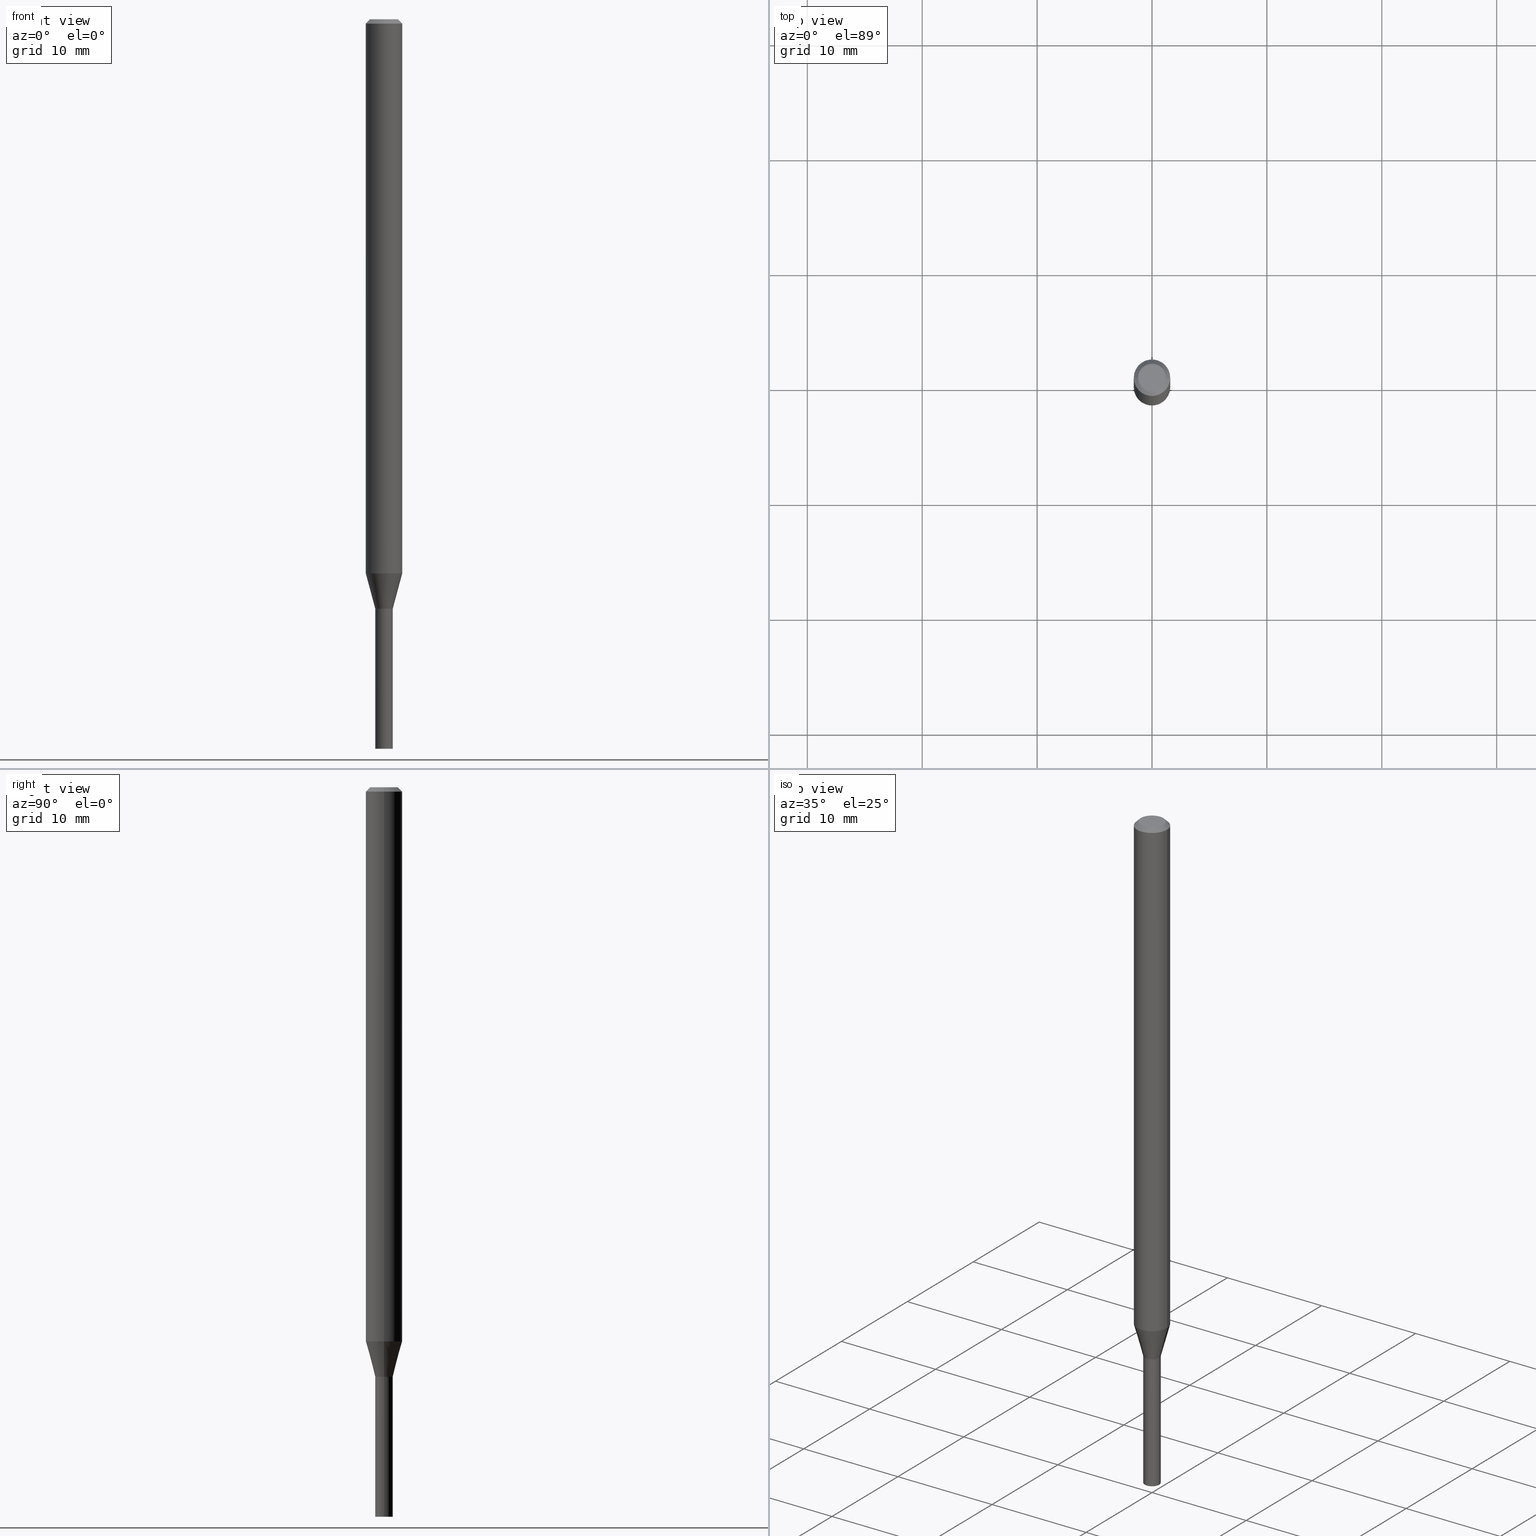
[diagram: canonical four-view strip — front | top / right | iso, engineering-drawing reading convention]
A machine part, canonical four-view strip (front | top / right | iso — engineering-drawing reading convention). The complete STEP part file that produces these views, byte-faithful:
ISO-10303-21;
HEADER;
FILE_DESCRIPTION (( 'STEP AP203' ),
    '1' );
FILE_NAME ('01267.STEP',
    '2024-03-20T00:46:48',
    ( '' ),
    ( '' ),
    'SwSTEP 2.0',
    'SolidWorks 2023',
    '' );
FILE_SCHEMA (( 'CONFIG_CONTROL_DESIGN' ));
ENDSEC;

DATA;
#1 = DIRECTION ( 'NONE',  ( -0.7071067811865656694, 7.493145998870420424E-15, 0.7071067811865294761 ) ) ;
#2 = CARTESIAN_POINT ( 'NONE',  ( 2.094888803306373988E-16, 0.02999999999999294897, -2.020000000000000018 ) ) ;
#3 = ADVANCED_FACE ( 'NONE', ( #33 ), #221, .T. ) ;
#4 = DIRECTION ( 'NONE',  ( 0.7071067811865511255, -7.319954787623268667E-15, -0.7071067811865439090 ) ) ;
#5 = EDGE_CURVE ( 'NONE', #382, #13, #309, .T. ) ;
#6 = CARTESIAN_POINT ( 'NONE',  ( -0.03000000000000020012, -6.512422520732689044E-15, -2.020000000000000018 ) ) ;
#7 = CARTESIAN_POINT ( 'NONE',  ( -0.06250000000000000000, -2.896749283981420152E-15, -0.01499999999999999944 ) ) ;
#8 = DIRECTION ( 'NONE',  ( 1.000000000000000000, -6.982962677686267499E-15, 4.852736867747366768E-29 ) ) ;
#9 = CIRCLE ( 'NONE', #76, 0.04749999999999999362 ) ;
#10 = DIRECTION ( 'NONE',  ( 0.7071067811865656694, -2.468850131082446387E-15, 0.7071067811865294761 ) ) ;
#11 = CALENDAR_DATE ( 2024, 19, 3 ) ;
#12 = DIRECTION ( 'NONE',  ( 1.000000000000000000, -6.982962677686250933E-15, 0.000000000000000000 ) ) ;
#13 = VERTEX_POINT ( 'NONE', #7 ) ;
#14 = DIRECTION ( 'NONE',  ( -1.000000000000000000, 6.982962677686266711E-15, 0.000000000000000000 ) ) ;
#15 = APPROVAL_STATUS ( 'not_yet_approved' ) ;
#16 = CARTESIAN_POINT ( 'NONE',  ( 4.939846988493976845E-29, -7.052792304463155252E-15, -2.020000000000000462 ) ) ;
#17 = ORIENTED_EDGE ( 'NONE', *, *, #322, .F. ) ;
#18 = CARTESIAN_POINT ( 'NONE',  ( 4.939846988493976845E-29, -7.052792304463155252E-15, -2.020000000000000462 ) ) ;
#19 = LINE ( 'NONE', #318, #424 ) ;
#20 = APPLICATION_CONTEXT ( 'configuration controlled 3d designs of mechanical parts and assemblies' ) ;
#21 = VERTEX_POINT ( 'NONE', #6 ) ;
#22 = AXIS2_PLACEMENT_3D ( 'NONE', #30, #337, #257 ) ;
#23 = DIRECTION ( 'NONE',  ( 1.000000000000000000, -6.982962677686250933E-15, 0.000000000000000000 ) ) ;
#24 = CONICAL_SURFACE ( 'NONE', #239, 0.02949999999999999845, 0.7853981633974739252 ) ;
#25 = ORIENTED_EDGE ( 'NONE', *, *, #376, .F. ) ;
#26 = ORIENTED_EDGE ( 'NONE', *, *, #120, .F. ) ;
#27 = EDGE_CURVE ( 'NONE', #386, #382, #430, .T. ) ;
#28 = ADVANCED_FACE ( 'NONE', ( #396 ), #291, .T. ) ;
#29 = VERTEX_POINT ( 'NONE', #70 ) ;
#30 = CARTESIAN_POINT ( 'NONE',  ( 3.668203209277705088E-31, -5.237222008264718399E-17, -0.01499999999999999944 ) ) ;
#31 = CONICAL_SURFACE ( 'NONE', #230, 0.06250000000000000000, 0.7853981633974533860 ) ;
#32 = DIRECTION ( 'NONE',  ( 2.445468806185136597E-29, -3.491481338843145583E-15, -1.000000000000000000 ) ) ;
#33 = FACE_OUTER_BOUND ( 'NONE', #459, .T. ) ;
#34 = EDGE_CURVE ( 'NONE', #29, #248, #398, .T. ) ;
#35 = DIRECTION ( 'NONE',  ( -2.445468806185136597E-29, 3.491481338843145583E-15, 1.000000000000000000 ) ) ;
#36 = AXIS2_PLACEMENT_3D ( 'NONE', #71, #363, #226 ) ;
#37 = VECTOR ( 'NONE', #453, 39.37007874015748143 ) ;
#38 = DIRECTION ( 'NONE',  ( -2.445468806185136597E-29, 3.491481338843145583E-15, 1.000000000000000000 ) ) ;
#39 = PRODUCT ( '01267', '01267', '', ( #371 ) ) ;
#40 = DIRECTION ( 'NONE',  ( -2.445468806185136597E-29, 3.491481338843145583E-15, 1.000000000000000000 ) ) ;
#41 = DIRECTION ( 'NONE',  ( 1.000000000000000000, -6.982962677686268288E-15, 0.000000000000000000 ) ) ;
#42 = CIRCLE ( 'NONE', #334, 0.03000000000000019665 ) ;
#43 = CIRCLE ( 'NONE', #277, 0.06250000000000000000 ) ;
#44 = LOCAL_TIME ( 20, 46, 48.00000000000000000, #73 ) ;
#45 = FACE_OUTER_BOUND ( 'NONE', #326, .T. ) ;
#46 = EDGE_LOOP ( 'NONE', ( #304, #93, #383, #282 ) ) ;
#47 = COORDINATED_UNIVERSAL_TIME_OFFSET ( 5, 0, .BEHIND. ) ;
#48 = FACE_OUTER_BOUND ( 'NONE', #118, .T. ) ;
#49 = APPROVAL ( #15, 'UNSPECIFIED' ) ;
#50 = DIRECTION ( 'NONE',  ( -2.445468806185136597E-29, 3.491481338843145583E-15, 1.000000000000000000 ) ) ;
#51 = DATE_TIME_ROLE ( 'classification_date' ) ;
#52 = EDGE_CURVE ( 'NONE', #276, #269, #225, .T. ) ;
#53 = CARTESIAN_POINT ( 'NONE',  ( 4.939846988493976284E-29, -7.052792304463154463E-15, -2.020000000000000018 ) ) ;
#54 = EDGE_CURVE ( 'NONE', #21, #269, #290, .T. ) ;
#55 = CARTESIAN_POINT ( 'NONE',  ( 4.938624254090883483E-29, -7.051046563793732960E-15, -2.019500000000000295 ) ) ;
#56 = ORIENTED_EDGE ( 'NONE', *, *, #120, .T. ) ;
#57 = DIRECTION ( 'NONE',  ( 1.000000000000000000, -6.982962677686265922E-15, 4.876176775795935793E-29 ) ) ;
#58 = EDGE_CURVE ( 'NONE', #423, #382, #110, .T. ) ;
#59 = EDGE_LOOP ( 'NONE', ( #210, #425, #449, #177 ) ) ;
#60 = VECTOR ( 'NONE', #289, 39.37007874015748143 ) ;
#61 = CIRCLE ( 'NONE', #122, 0.02949999999999999845 ) ;
#62 = VERTEX_POINT ( 'NONE', #253 ) ;
#63 = ORIENTED_EDGE ( 'NONE', *, *, #407, .F. ) ;
#64 = APPROVAL ( #313, 'UNSPECIFIED' ) ;
#65 = ORIENTED_EDGE ( 'NONE', *, *, #78, .F. ) ;
#66 = LINE ( 'NONE', #294, #185 ) ;
#67 = VECTOR ( 'NONE', #10, 39.37007874015748143 ) ;
#68 = DIRECTION ( 'NONE',  ( -2.445468806185136877E-29, 3.491481338843145188E-15, 1.000000000000000000 ) ) ;
#69 = DIRECTION ( 'NONE',  ( 1.000000000000000000, -6.982962677686250933E-15, 0.000000000000000000 ) ) ;
#70 = CARTESIAN_POINT ( 'NONE',  ( -0.02999999999999999889, -7.677585005057479852E-15, -2.020000000000000018 ) ) ;
#71 = CARTESIAN_POINT ( 'NONE',  ( 0.000000000000000000, 0.000000000000000000, 0.000000000000000000 ) ) ;
#72 = CARTESIAN_POINT ( 'NONE',  ( -0.03000000000000019665, -6.837883743065701137E-15, -2.019500000000000295 ) ) ;
#73 = COORDINATED_UNIVERSAL_TIME_OFFSET ( 5, 0, .BEHIND. ) ;
#74 = CYLINDRICAL_SURFACE ( 'NONE', #457, 0.03000000000000020012 ) ;
#75 = CIRCLE ( 'NONE', #404, 0.02999999999999999889 ) ;
#76 = AXIS2_PLACEMENT_3D ( 'NONE', #370, #409, #8 ) ;
#77 = PERSON_AND_ORGANIZATION_ROLE ( 'design_supplier' ) ;
#78 = EDGE_CURVE ( 'NONE', #465, #248, #297, .T. ) ;
#79 = DIRECTION ( 'NONE',  ( 2.438088387897960049E-29, -3.491481338843145188E-15, -1.000000000000000000 ) ) ;
#80 = PERSON_AND_ORGANIZATION ( #175, #268 ) ;
#81 = CARTESIAN_POINT ( 'NONE',  ( 4.643232038921227180E-29, -6.629304767580318063E-15, -1.898708348754012398 ) ) ;
#82 = CC_DESIGN_PERSON_AND_ORGANIZATION_ASSIGNMENT ( #401, #77, ( #113 ) ) ;
#83 = ORIENTED_EDGE ( 'NONE', *, *, #54, .T. ) ;
#84 = PERSON_AND_ORGANIZATION ( #175, #268 ) ;
#85 = DIRECTION ( 'NONE',  ( 1.000000000000000000, -6.982962677686266711E-15, 4.876176775795935793E-29 ) ) ;
#86 = ADVANCED_FACE ( 'NONE', ( #149 ), #392, .F. ) ;
#87 = VECTOR ( 'NONE', #332, 39.37007874015748143 ) ;
#88 = CALENDAR_DATE ( 2024, 19, 3 ) ;
#89 = VECTOR ( 'NONE', #258, 39.37007874015748143 ) ;
#90 = CARTESIAN_POINT ( 'NONE',  ( 0.03000000000000020012, -2.094888803305894015E-16, 1.462853032738790512E-30 ) ) ;
#91 = EDGE_LOOP ( 'NONE', ( #115, #129, #137, #442 ) ) ;
#92 = CARTESIAN_POINT ( 'NONE',  ( 4.939846988493976845E-29, -7.052792304463155252E-15, -2.020000000000000462 ) ) ;
#93 = ORIENTED_EDGE ( 'NONE', *, *, #426, .T. ) ;
#94 = DIRECTION ( 'NONE',  ( -2.438088387897960049E-29, 3.491481338843145188E-15, 1.000000000000000000 ) ) ;
#95 = ADVANCED_FACE ( 'NONE', ( #108 ), #255, .T. ) ;
#96 = ORIENTED_EDGE ( 'NONE', *, *, #376, .T. ) ;
#97 = VECTOR ( 'NONE', #128, 39.37007874015748854 ) ;
#98 = CARTESIAN_POINT ( 'NONE',  ( 0.03000000000000019665, -7.260535444124322854E-15, -2.019500000000000295 ) ) ;
#99 = CC_DESIGN_DATE_AND_TIME_ASSIGNMENT ( #274, #51, ( #193 ) ) ;
#100 = ORIENTED_EDGE ( 'NONE', *, *, #78, .T. ) ;
#101 = EDGE_LOOP ( 'NONE', ( #418, #366, #301, #317 ) ) ;
#102 = EDGE_CURVE ( 'NONE', #415, #269, #42, .T. ) ;
#103 = DIRECTION ( 'NONE',  ( -2.445468806185136597E-29, 3.491481338843145583E-15, 1.000000000000000000 ) ) ;
#104 = EDGE_CURVE ( 'NONE', #465, #62, #184, .T. ) ;
#105 = DIRECTION ( 'NONE',  ( 1.000000000000000000, -6.982962677686267499E-15, 4.876176775795936353E-29 ) ) ;
#106 = CIRCLE ( 'NONE', #368, 0.03000000000000020012 ) ;
#107 = EDGE_CURVE ( 'NONE', #353, #13, #66, .T. ) ;
#108 = FACE_OUTER_BOUND ( 'NONE', #124, .T. ) ;
#109 = ADVANCED_FACE ( 'NONE', ( #219 ), #31, .T. ) ;
#110 = LINE ( 'NONE', #331, #202 ) ;
#111 = CARTESIAN_POINT ( 'NONE',  ( 4.939846988493976845E-29, -7.052792304463155252E-15, -2.020000000000000462 ) ) ;
#112 = CIRCLE ( 'NONE', #393, 0.03000000000000020012 ) ;
#113 = PRODUCT_DEFINITION_FORMATION_WITH_SPECIFIED_SOURCE ( 'ANY', '', #39, .NOT_KNOWN. ) ;
#114 = DIRECTION ( 'NONE',  ( -2.445468806185136597E-29, 3.491481338843145583E-15, 1.000000000000000000 ) ) ;
#115 = ORIENTED_EDGE ( 'NONE', *, *, #52, .F. ) ;
#116 = CALENDAR_DATE ( 2024, 19, 3 ) ;
#117 = FACE_OUTER_BOUND ( 'NONE', #421, .T. ) ;
#118 = EDGE_LOOP ( 'NONE', ( #375, #433, #171, #324 ) ) ;
#119 = PERSON_AND_ORGANIZATION ( #175, #268 ) ;
#120 = EDGE_CURVE ( 'NONE', #423, #390, #299, .T. ) ;
#121 = CYLINDRICAL_SURFACE ( 'NONE', #131, 0.06250000000000000000 ) ;
#122 = AXIS2_PLACEMENT_3D ( 'NONE', #18, #422, #23 ) ;
#123 = CYLINDRICAL_SURFACE ( 'NONE', #154, 0.02999999999999999889 ) ;
#124 = EDGE_LOOP ( 'NONE', ( #139, #169, #328, #63 ) ) ;
#125 = DIRECTION ( 'NONE',  ( 1.000000000000000000, 0.000000000000000000, 0.000000000000000000 ) ) ;
#126 = CYLINDRICAL_SURFACE ( 'NONE', #192, 0.03000000000000020012 ) ;
#127 = DATE_AND_TIME ( #403, #286 ) ;
#128 = DIRECTION ( 'NONE',  ( -0.2588190451025211281, 5.211531920934547886E-15, 0.9659258262890679791 ) ) ;
#129 = ORIENTED_EDGE ( 'NONE', *, *, #247, .T. ) ;
#130 = CLOSED_SHELL ( 'NONE', ( #3, #369, #220, #86 ) ) ;
#131 = AXIS2_PLACEMENT_3D ( 'NONE', #402, #114, #365 ) ;
#132 = LOCAL_TIME ( 20, 46, 48.00000000000000000, #450 ) ;
#133 = FACE_OUTER_BOUND ( 'NONE', #262, .T. ) ;
#134 = ORIENTED_EDGE ( 'NONE', *, *, #135, .F. ) ;
#135 = EDGE_CURVE ( 'NONE', #62, #29, #295, .T. ) ;
#136 = DIRECTION ( 'NONE',  ( 1.000000000000000000, -6.982962677686253300E-15, 0.000000000000000000 ) ) ;
#137 = ORIENTED_EDGE ( 'NONE', *, *, #243, .T. ) ;
#138 = CARTESIAN_POINT ( 'NONE',  ( 6.194428952736783458E-29, -8.613054816532157721E-15, -2.500000000000000000 ) ) ;
#139 = ORIENTED_EDGE ( 'NONE', *, *, #107, .F. ) ;
#140 = CLOSED_SHELL ( 'NONE', ( #338, #216, #109, #197, #416, #278, #95, #158, #165, #464, #28, #256 ) ) ;
#141 = AXIS2_PLACEMENT_3D ( 'NONE', #55, #420, #381 ) ;
#142 = EDGE_LOOP ( 'NONE', ( #26, #436, #214, #288 ) ) ;
#143 = MANIFOLD_SOLID_BREP ( 'Body-Move/Copy2[2]', #140 ) ;
#144 = DIRECTION ( 'NONE',  ( 1.000000000000000000, -6.982962677686268288E-15, 0.000000000000000000 ) ) ;
#145 = DIRECTION ( 'NONE',  ( -2.445468806185136597E-29, 3.491481338843145583E-15, 1.000000000000000000 ) ) ;
#146 = CC_DESIGN_PERSON_AND_ORGANIZATION_ASSIGNMENT ( #240, #161, ( #39 ) ) ;
#147 = AXIS2_PLACEMENT_3D ( 'NONE', #2, #361, #359 ) ;
#148 = CIRCLE ( 'NONE', #429, 0.06250000000000000000 ) ;
#149 = FACE_OUTER_BOUND ( 'NONE', #215, .T. ) ;
#150 = CC_DESIGN_APPROVAL ( #49, ( #196 ) ) ;
#151 = CARTESIAN_POINT ( 'NONE',  ( 4.938624254090883483E-29, -7.051046563793732960E-15, -2.019500000000000295 ) ) ;
#152 = CARTESIAN_POINT ( 'NONE',  ( -0.03000000000000020012, 2.131628207280314777E-16, -1.475680527076481516E-30 ) ) ;
#153 = CARTESIAN_POINT ( 'NONE',  ( 0.02949999999999999845, -7.258789703454898984E-15, -2.020000000000000462 ) ) ;
#154 = AXIS2_PLACEMENT_3D ( 'NONE', #314, #434, #400 ) ;
#155 = APPROVAL_DATE_TIME ( #127, #345 ) ;
#156 = FACE_OUTER_BOUND ( 'NONE', #463, .T. ) ;
#157 = ORIENTED_EDGE ( 'NONE', *, *, #34, .T. ) ;
#158 = ADVANCED_FACE ( 'NONE', ( #156 ), #267, .T. ) ;
#159 = CARTESIAN_POINT ( 'NONE',  ( 0.000000000000000000, 0.000000000000000000, 0.000000000000000000 ) ) ;
#160 = CARTESIAN_POINT ( 'NONE',  ( 0.000000000000000000, 0.000000000000000000, 0.000000000000000000 ) ) ;
#161 = PERSON_AND_ORGANIZATION_ROLE ( 'design_owner' ) ;
#162 = DIRECTION ( 'NONE',  ( 1.000000000000000000, -6.982962677686262766E-15, 0.000000000000000000 ) ) ;
#163 = CIRCLE ( 'NONE', #141, 0.03000000000000019665 ) ;
#164 = CALENDAR_DATE ( 2024, 19, 3 ) ;
#165 = ADVANCED_FACE ( 'NONE', ( #201 ), #339, .F. ) ;
#166 = CARTESIAN_POINT ( 'NONE',  ( 0.02949999999999999845, -7.258789703454898984E-15, -2.020000000000000462 ) ) ;
#167 = PERSON_AND_ORGANIZATION_ROLE ( 'creator' ) ;
#168 = DIRECTION ( 'NONE',  ( -2.445468806185136597E-29, 3.491481338843145583E-15, 1.000000000000000000 ) ) ;
#169 = ORIENTED_EDGE ( 'NONE', *, *, #322, .T. ) ;
#170 = CARTESIAN_POINT ( 'NONE',  ( 0.06250000000000000000, -4.888073874380388472E-16, -0.01499999999999999944 ) ) ;
#171 = ORIENTED_EDGE ( 'NONE', *, *, #102, .F. ) ;
#172 = AXIS2_PLACEMENT_3D ( 'NONE', #111, #145, #69 ) ;
#173 = DIRECTION ( 'NONE',  ( -2.445468806185136597E-29, 3.491481338843145583E-15, 1.000000000000000000 ) ) ;
#174 = ORIENTED_EDGE ( 'NONE', *, *, #349, .F. ) ;
#175 = PERSON ( 'UNSPECIFIED', 'UNSPECIFIED', 'UNSPECIFIED', ('UNSPECIFIED'), ('UNSPECIFIED'), ('UNSPECIFIED') ) ;
#176 = EDGE_CURVE ( 'NONE', #390, #423, #9, .T. ) ;
#177 = ORIENTED_EDGE ( 'NONE', *, *, #27, .F. ) ;
#178 = CC_DESIGN_PERSON_AND_ORGANIZATION_ASSIGNMENT ( #452, #272, ( #113 ) ) ;
#179 = ORIENTED_EDGE ( 'NONE', *, *, #247, .F. ) ;
#180 = AXIS2_PLACEMENT_3D ( 'NONE', #271, #79, #306 ) ;
#181 = DIRECTION ( 'NONE',  ( 1.000000000000000000, -6.982962677686254089E-15, 0.000000000000000000 ) ) ;
#182 = CARTESIAN_POINT ( 'NONE',  ( 4.939846988493976284E-29, -7.052792304463154463E-15, -2.020000000000000018 ) ) ;
#183 = CARTESIAN_POINT ( 'NONE',  ( 3.774932479771048470E-45, -5.389603120341614588E-31, -1.543643685097680012E-16 ) ) ;
#184 = CIRCLE ( 'NONE', #443, 0.02999999999999999889 ) ;
#185 = VECTOR ( 'NONE', #68, 39.37007874015748143 ) ;
#186 = DIRECTION ( 'NONE',  ( 1.000000000000000000, -6.982962677686267499E-15, 4.852736867747366768E-29 ) ) ;
#187 = CC_DESIGN_PERSON_AND_ORGANIZATION_ASSIGNMENT ( #190, #302, ( #193 ) ) ;
#188 = CARTESIAN_POINT ( 'NONE',  ( 0.000000000000000000, 0.000000000000000000, 0.000000000000000000 ) ) ;
#189 = DIRECTION ( 'NONE',  ( -2.445468806185136597E-29, 3.491481338843145583E-15, 1.000000000000000000 ) ) ;
#190 = PERSON_AND_ORGANIZATION ( #175, #268 ) ;
#191 = FACE_OUTER_BOUND ( 'NONE', #101, .T. ) ;
#192 = AXIS2_PLACEMENT_3D ( 'NONE', #160, #410, #85 ) ;
#193 = SECURITY_CLASSIFICATION ( '', '', #377 ) ;
#194 =( NAMED_UNIT ( * ) PLANE_ANGLE_UNIT ( ) SI_UNIT ( $, .RADIAN. ) );
#195 = DIRECTION ( 'NONE',  ( -2.445468806185136597E-29, 3.491481338843145583E-15, 1.000000000000000000 ) ) ;
#196 = PRODUCT_DEFINITION ( 'UNKNOWN', '', #113, #264 ) ;
#197 = ADVANCED_FACE ( 'NONE', ( #263 ), #121, .T. ) ;
#198 = DATE_TIME_ROLE ( 'creation_date' ) ;
#199 = DIRECTION ( 'NONE',  ( 1.000000000000000000, -6.982962677686253300E-15, 0.000000000000000000 ) ) ;
#200 = VERTEX_POINT ( 'NONE', #153 ) ;
#201 = FACE_OUTER_BOUND ( 'NONE', #242, .T. ) ;
#202 = VECTOR ( 'NONE', #4, 39.37007874015748143 ) ;
#203 = CC_DESIGN_SECURITY_CLASSIFICATION ( #193, ( #113 ) ) ;
#204 = SHAPE_DEFINITION_REPRESENTATION ( #259, #327 ) ;
#205 = DIRECTION ( 'NONE',  ( -2.445468806185136597E-29, 3.491481338843145583E-15, 1.000000000000000000 ) ) ;
#206 = FACE_OUTER_BOUND ( 'NONE', #46, .T. ) ;
#207 = ORIENTED_EDGE ( 'NONE', *, *, #426, .F. ) ;
#208 = UNCERTAINTY_MEASURE_WITH_UNIT (LENGTH_MEASURE( 1.000000000000000082E-05 ), #462, 'distance_accuracy_value', 'NONE');
#209 = DIRECTION ( 'NONE',  ( -2.445468806185136597E-29, 3.491481338843145583E-15, 1.000000000000000000 ) ) ;
#210 = ORIENTED_EDGE ( 'NONE', *, *, #222, .T. ) ;
#211 = AXIS2_PLACEMENT_3D ( 'NONE', #182, #103, #144 ) ;
#212 = AXIS2_PLACEMENT_3D ( 'NONE', #183, #35, #186 ) ;
#213 =( LENGTH_UNIT ( ) NAMED_UNIT ( * ) SI_UNIT ( $, .METRE. ) );
#214 = ORIENTED_EDGE ( 'NONE', *, *, #5, .T. ) ;
#215 = EDGE_LOOP ( 'NONE', ( #461, #157 ) ) ;
#216 = ADVANCED_FACE ( 'NONE', ( #48 ), #24, .T. ) ;
#217 = ORIENTED_EDGE ( 'NONE', *, *, #176, .F. ) ;
#218 = CIRCLE ( 'NONE', #335, 0.02999999999999999889 ) ;
#219 = FACE_OUTER_BOUND ( 'NONE', #142, .T. ) ;
#220 = ADVANCED_FACE ( 'NONE', ( #45 ), #123, .T. ) ;
#221 = CYLINDRICAL_SURFACE ( 'NONE', #298, 0.02999999999999999889 ) ;
#222 = EDGE_CURVE ( 'NONE', #386, #353, #43, .T. ) ;
#223 = CARTESIAN_POINT ( 'NONE',  ( -0.02949999999999999845, -6.843182197413925117E-15, -2.020000000000000462 ) ) ;
#224 = AXIS2_PLACEMENT_3D ( 'NONE', #92, #94, #384 ) ;
#225 = LINE ( 'NONE', #223, #378 ) ;
#226 = DIRECTION ( 'NONE',  ( 1.000000000000000000, -6.982962677686266711E-15, 4.876176775795935793E-29 ) ) ;
#227 = CARTESIAN_POINT ( 'NONE',  ( -0.02949999999999999845, -6.840532970239813127E-15, -2.020000000000000462 ) ) ;
#228 = PERSON_AND_ORGANIZATION ( #175, #268 ) ;
#229 = CARTESIAN_POINT ( 'NONE',  ( 0.000000000000000000, 0.000000000000000000, 0.000000000000000000 ) ) ;
#230 = AXIS2_PLACEMENT_3D ( 'NONE', #360, #32, #428 ) ;
#231 = ORIENTED_EDGE ( 'NONE', *, *, #385, .F. ) ;
#232 = APPROVAL_ROLE ( '' ) ;
#233 = CARTESIAN_POINT ( 'NONE',  ( 4.939846988493976284E-29, -7.052792304463154463E-15, -2.020000000000000018 ) ) ;
#234 = COORDINATED_UNIVERSAL_TIME_OFFSET ( 5, 0, .BEHIND. ) ;
#235 = CARTESIAN_POINT ( 'NONE',  ( 4.939846988493976284E-29, -7.052792304463154463E-15, -2.020000000000000018 ) ) ;
#236 = ORIENTED_EDGE ( 'NONE', *, *, #448, .T. ) ;
#237 =( NAMED_UNIT ( * ) SI_UNIT ( $, .STERADIAN. ) SOLID_ANGLE_UNIT ( ) );
#238 = PLANE ( 'NONE',  #292 ) ;
#239 = AXIS2_PLACEMENT_3D ( 'NONE', #16, #300, #266 ) ;
#240 = PERSON_AND_ORGANIZATION ( #175, #268 ) ;
#241 = CARTESIAN_POINT ( 'NONE',  ( -0.06250000000000000000, -6.185215557730254658E-15, -1.898708348754012398 ) ) ;
#242 = EDGE_LOOP ( 'NONE', ( #454, #56 ) ) ;
#243 = EDGE_CURVE ( 'NONE', #200, #415, #273, .T. ) ;
#244 = CARTESIAN_POINT ( 'NONE',  ( 0.02999999999999999889, -8.938192227438451682E-15, -2.500000000000000000 ) ) ;
#245 = ORIENTED_EDGE ( 'NONE', *, *, #34, .F. ) ;
#246 = DIRECTION ( 'NONE',  ( -2.445468806185136877E-29, 3.491481338843145188E-15, 1.000000000000000000 ) ) ;
#247 = EDGE_CURVE ( 'NONE', #276, #200, #413, .T. ) ;
#248 = VERTEX_POINT ( 'NONE', #441 ) ;
#249 = CARTESIAN_POINT ( 'NONE',  ( 3.668203209277705088E-31, -5.237222008264718399E-17, -0.01499999999999999944 ) ) ;
#250 = ORIENTED_EDGE ( 'NONE', *, *, #419, .T. ) ;
#251 = EDGE_CURVE ( 'NONE', #280, #21, #112, .T. ) ;
#252 = ORIENTED_EDGE ( 'NONE', *, *, #439, .T. ) ;
#253 = CARTESIAN_POINT ( 'NONE',  ( -0.02999999999999999889, -7.677585005057479852E-15, -2.500000000000000000 ) ) ;
#254 = AXIS2_PLACEMENT_3D ( 'NONE', #344, #451, #12 ) ;
#255 = CYLINDRICAL_SURFACE ( 'NONE', #36, 0.06250000000000000000 ) ;
#256 = ADVANCED_FACE ( 'NONE', ( #191 ), #126, .F. ) ;
#257 = DIRECTION ( 'NONE',  ( 1.000000000000000000, -6.982962677686266711E-15, 0.000000000000000000 ) ) ;
#258 = DIRECTION ( 'NONE',  ( -2.445468806185136877E-29, 3.491481338843145188E-15, 1.000000000000000000 ) ) ;
#259 = PRODUCT_DEFINITION_SHAPE ( 'NONE', 'NONE',  #196 ) ;
#260 = CARTESIAN_POINT ( 'NONE',  ( 0.02999999999999999889, -2.094888803305880210E-16, 1.462853032738780878E-30 ) ) ;
#261 = DIRECTION ( 'NONE',  ( 1.000000000000000000, -6.982962677686262766E-15, 0.000000000000000000 ) ) ;
#262 = EDGE_LOOP ( 'NONE', ( #312, #179 ) ) ;
#263 = FACE_OUTER_BOUND ( 'NONE', #59, .T. ) ;
#264 = DESIGN_CONTEXT ( 'detailed design', #20, 'design' ) ;
#265 = APPROVAL_STATUS ( 'not_yet_approved' ) ;
#266 = DIRECTION ( 'NONE',  ( 1.000000000000000000, -6.982962677686250933E-15, 0.000000000000000000 ) ) ;
#267 = CONICAL_SURFACE ( 'NONE', #341, 0.06250000000000000000, 0.7853981633974533860 ) ;
#268 = ORGANIZATION ( 'UNSPECIFIED', 'UNSPECIFIED', '' ) ;
#269 = VERTEX_POINT ( 'NONE', #72 ) ;
#270 = APPLICATION_PROTOCOL_DEFINITION ( 'international standard', 'config_control_design', 1994, #432 ) ;
#271 = CARTESIAN_POINT ( 'NONE',  ( 3.316907271900976096E-16, 0.04749999999999999362, -2.430275478499333970E-16 ) ) ;
#272 = PERSON_AND_ORGANIZATION_ROLE ( 'creator' ) ;
#273 = LINE ( 'NONE', #166, #67 ) ;
#274 = DATE_AND_TIME ( #164, #44 ) ;
#275 = CARTESIAN_POINT ( 'NONE',  ( -0.03000000000000020012, -6.839629483735122641E-15, -2.020000000000000018 ) ) ;
#276 = VERTEX_POINT ( 'NONE', #227 ) ;
#277 = AXIS2_PLACEMENT_3D ( 'NONE', #81, #189, #261 ) ;
#278 = ADVANCED_FACE ( 'NONE', ( #364 ), #354, .T. ) ;
#279 = PLANE ( 'NONE',  #224 ) ;
#280 = VERTEX_POINT ( 'NONE', #346 ) ;
#281 = CARTESIAN_POINT ( 'NONE',  ( 0.04749999999999999362, -4.035134999187581581E-16, -1.543643685097654127E-16 ) ) ;
#282 = ORIENTED_EDGE ( 'NONE', *, *, #448, .F. ) ;
#283 = CARTESIAN_POINT ( 'NONE',  ( 4.939846988493976284E-29, -7.052792304463154463E-15, -2.020000000000000018 ) ) ;
#284 = ORIENTED_EDGE ( 'NONE', *, *, #385, .T. ) ;
#285 =( GEOMETRIC_REPRESENTATION_CONTEXT ( 3 ) GLOBAL_UNCERTAINTY_ASSIGNED_CONTEXT ( ( #208 ) ) GLOBAL_UNIT_ASSIGNED_CONTEXT ( ( #462, #194, #237 ) ) REPRESENTATION_CONTEXT ( 'NONE', 'WORKASPACE' ) );
#286 = LOCAL_TIME ( 20, 46, 48.00000000000000000, #234 ) ;
#287 = PRODUCT_RELATED_PRODUCT_CATEGORY ( 'detail', '', ( #39 ) ) ;
#288 = ORIENTED_EDGE ( 'NONE', *, *, #419, .F. ) ;
#289 = DIRECTION ( 'NONE',  ( -2.445468806185136877E-29, 3.491481338843145188E-15, 1.000000000000000000 ) ) ;
#290 = LINE ( 'NONE', #152, #60 ) ;
#291 = CONICAL_SURFACE ( 'NONE', #172, 0.02949999999999999845, 0.7853981633974739252 ) ;
#292 = AXIS2_PLACEMENT_3D ( 'NONE', #138, #417, #57 ) ;
#293 = LOCAL_TIME ( 20, 46, 48.00000000000000000, #340 ) ;
#294 = CARTESIAN_POINT ( 'NONE',  ( -0.06250000000000000000, 4.440892098500626162E-16, -3.074334431409316114E-30 ) ) ;
#295 = LINE ( 'NONE', #431, #89 ) ;
#296 = EDGE_CURVE ( 'NONE', #248, #29, #218, .T. ) ;
#297 = LINE ( 'NONE', #260, #455 ) ;
#298 = AXIS2_PLACEMENT_3D ( 'NONE', #188, #395, #105 ) ;
#299 = CIRCLE ( 'NONE', #212, 0.04749999999999999362 ) ;
#300 = DIRECTION ( 'NONE',  ( -2.445468806185136597E-29, 3.491481338843145583E-15, 1.000000000000000000 ) ) ;
#301 = ORIENTED_EDGE ( 'NONE', *, *, #349, .T. ) ;
#302 = PERSON_AND_ORGANIZATION_ROLE ( 'classification_officer' ) ;
#303 = CARTESIAN_POINT ( 'NONE',  ( 4.643232038921227180E-29, -6.629304767580318063E-15, -1.898708348754012398 ) ) ;
#304 = ORIENTED_EDGE ( 'NONE', *, *, #251, .T. ) ;
#305 = APPLICATION_PROTOCOL_DEFINITION ( 'international standard', 'config_control_design', 1994, #20 ) ;
#306 = DIRECTION ( 'NONE',  ( -1.000000000000000000, 6.982962677686265922E-15, -4.876176775795935793E-29 ) ) ;
#307 = ORIENTED_EDGE ( 'NONE', *, *, #104, .T. ) ;
#308 = APPROVAL_ROLE ( '' ) ;
#309 = CIRCLE ( 'NONE', #22, 0.06250000000000000000 ) ;
#310 = DIRECTION ( 'NONE',  ( 1.000000000000000000, -6.982962677686266711E-15, 4.876176775795935793E-29 ) ) ;
#311 = AXIS2_PLACEMENT_3D ( 'NONE', #53, #168, #136 ) ;
#312 = ORIENTED_EDGE ( 'NONE', *, *, #394, .F. ) ;
#313 = APPROVAL_STATUS ( 'not_yet_approved' ) ;
#314 = CARTESIAN_POINT ( 'NONE',  ( 0.000000000000000000, 0.000000000000000000, 0.000000000000000000 ) ) ;
#315 = DIRECTION ( 'NONE',  ( 0.000000000000000000, 0.000000000000000000, 1.000000000000000000 ) ) ;
#316 = CARTESIAN_POINT ( 'NONE',  ( -0.06250000000000000000, 3.840629472727444916E-16, -0.01499999999999999944 ) ) ;
#317 = ORIENTED_EDGE ( 'NONE', *, *, #102, .T. ) ;
#318 = CARTESIAN_POINT ( 'NONE',  ( 0.03000000000000020012, -7.262281184793743569E-15, -2.020000000000000018 ) ) ;
#319 = ORIENTED_EDGE ( 'NONE', *, *, #58, .F. ) ;
#320 = VECTOR ( 'NONE', #246, 39.37007874015748143 ) ;
#321 = APPROVAL_PERSON_ORGANIZATION ( #228, #49, #411 ) ;
#322 = EDGE_CURVE ( 'NONE', #353, #386, #148, .T. ) ;
#323 = DIRECTION ( 'NONE',  ( 1.000000000000000000, -6.982962677686253300E-15, 0.000000000000000000 ) ) ;
#324 = ORIENTED_EDGE ( 'NONE', *, *, #243, .F. ) ;
#325 = LENGTH_MEASURE_WITH_UNIT ( LENGTH_MEASURE( 0.02539999999999999897 ), #213 );
#326 = EDGE_LOOP ( 'NONE', ( #134, #284, #100, #245 ) ) ;
#327 = ADVANCED_BREP_SHAPE_REPRESENTATION ( '01267', ( #440, #143, #329 ), #285 ) ;
#328 = ORIENTED_EDGE ( 'NONE', *, *, #27, .T. ) ;
#329 = AXIS2_PLACEMENT_3D ( 'NONE', #159, #315, #125 ) ;
#330 = CARTESIAN_POINT ( 'NONE',  ( 6.113672015462842613E-29, -8.728703347107864943E-15, -2.500000000000000000 ) ) ;
#331 = CARTESIAN_POINT ( 'NONE',  ( 0.06250000000000000000, -4.811533449433679005E-16, -0.01499999999999999944 ) ) ;
#332 = DIRECTION ( 'NONE',  ( -2.445468806185136877E-29, 3.491481338843145188E-15, 1.000000000000000000 ) ) ;
#333 = CC_DESIGN_DATE_AND_TIME_ASSIGNMENT ( #367, #198, ( #196 ) ) ;
#334 = AXIS2_PLACEMENT_3D ( 'NONE', #151, #336, #181 ) ;
#335 = AXIS2_PLACEMENT_3D ( 'NONE', #233, #372, #41 ) ;
#336 = DIRECTION ( 'NONE',  ( -2.445468806185136597E-29, 3.491481338843145583E-15, 1.000000000000000000 ) ) ;
#337 = DIRECTION ( 'NONE',  ( -2.445468806185136597E-29, 3.491481338843145583E-15, 1.000000000000000000 ) ) ;
#338 = ADVANCED_FACE ( 'NONE', ( #117 ), #74, .F. ) ;
#339 = PLANE ( 'NONE',  #180 ) ;
#340 = COORDINATED_UNIVERSAL_TIME_OFFSET ( 5, 0, .BEHIND. ) ;
#341 = AXIS2_PLACEMENT_3D ( 'NONE', #406, #342, #14 ) ;
#342 = DIRECTION ( 'NONE',  ( 2.445468806185136597E-29, -3.491481338843145583E-15, -1.000000000000000000 ) ) ;
#343 = DIRECTION ( 'NONE',  ( -2.445468806185136597E-29, 3.491481338843145583E-15, 1.000000000000000000 ) ) ;
#344 = CARTESIAN_POINT ( 'NONE',  ( 4.939846988493976845E-29, -7.052792304463155252E-15, -2.020000000000000462 ) ) ;
#345 = APPROVAL ( #265, 'UNSPECIFIED' ) ;
#346 = CARTESIAN_POINT ( 'NONE',  ( 0.03000000000000020012, -7.262281184793743569E-15, -2.020000000000000018 ) ) ;
#347 = CARTESIAN_POINT ( 'NONE',  ( 0.06250000000000000000, -7.065739934935709732E-15, -1.898708348754012398 ) ) ;
#348 = DIMENSIONAL_EXPONENTS ( 1.000000000000000000, 0.000000000000000000, 0.000000000000000000, 0.000000000000000000, 0.000000000000000000, 0.000000000000000000, 0.000000000000000000 ) ;
#349 = EDGE_CURVE ( 'NONE', #280, #415, #447, .T. ) ;
#350 = LINE ( 'NONE', #275, #97 ) ;
#351 = ORIENTED_EDGE ( 'NONE', *, *, #104, .F. ) ;
#352 = FACE_OUTER_BOUND ( 'NONE', #391, .T. ) ;
#353 = VERTEX_POINT ( 'NONE', #241 ) ;
#354 = CONICAL_SURFACE ( 'NONE', #466, 0.03000000000000020012, 0.2617993877991498519 ) ;
#355 = CARTESIAN_POINT ( 'NONE',  ( -0.04749999999999999362, 3.578768372314208041E-16, -1.543643685097703924E-16 ) ) ;
#356 = ORIENTED_EDGE ( 'NONE', *, *, #135, .T. ) ;
#357 = ORIENTED_EDGE ( 'NONE', *, *, #407, .T. ) ;
#358 = EDGE_LOOP ( 'NONE', ( #207, #96, #236, #17 ) ) ;
#359 = DIRECTION ( 'NONE',  ( -1.000000000000000000, 6.982962677686265922E-15, -4.876176775795935793E-29 ) ) ;
#360 = CARTESIAN_POINT ( 'NONE',  ( 3.668203209277705088E-31, -5.237222008264718399E-17, -0.01499999999999999944 ) ) ;
#361 = DIRECTION ( 'NONE',  ( 2.438088387897960049E-29, -3.491481338843145188E-15, -1.000000000000000000 ) ) ;
#362 = CONICAL_SURFACE ( 'NONE', #311, 0.03000000000000020012, 0.2617993877991498519 ) ;
#363 = DIRECTION ( 'NONE',  ( -2.445468806185136597E-29, 3.491481338843145583E-15, 1.000000000000000000 ) ) ;
#364 = FACE_OUTER_BOUND ( 'NONE', #358, .T. ) ;
#365 = DIRECTION ( 'NONE',  ( 1.000000000000000000, -6.982962677686266711E-15, 4.876176775795935793E-29 ) ) ;
#366 = ORIENTED_EDGE ( 'NONE', *, *, #251, .F. ) ;
#367 = DATE_AND_TIME ( #11, #132 ) ;
#368 = AXIS2_PLACEMENT_3D ( 'NONE', #283, #205, #323 ) ;
#369 = ADVANCED_FACE ( 'NONE', ( #352 ), #238, .F. ) ;
#370 = CARTESIAN_POINT ( 'NONE',  ( 3.774932479771048470E-45, -5.389603120341614588E-31, -1.543643685097680012E-16 ) ) ;
#371 = MECHANICAL_CONTEXT ( 'NONE', #432, 'mechanical' ) ;
#372 = DIRECTION ( 'NONE',  ( -2.445468806185136597E-29, 3.491481338843145583E-15, 1.000000000000000000 ) ) ;
#373 = APPROVAL_DATE_TIME ( #444, #64 ) ;
#374 = DIRECTION ( 'NONE',  ( 1.000000000000000000, -6.982962677686253300E-15, 0.000000000000000000 ) ) ;
#375 = ORIENTED_EDGE ( 'NONE', *, *, #394, .T. ) ;
#376 = EDGE_CURVE ( 'NONE', #21, #280, #106, .T. ) ;
#377 = SECURITY_CLASSIFICATION_LEVEL ( 'unclassified' ) ;
#378 = VECTOR ( 'NONE', #1, 39.37007874015748143 ) ;
#379 = CARTESIAN_POINT ( 'NONE',  ( 6.113672015462842613E-29, -8.728703347107864943E-15, -2.500000000000000000 ) ) ;
#380 = APPROVAL_DATE_TIME ( #438, #49 ) ;
#381 = DIRECTION ( 'NONE',  ( 1.000000000000000000, -6.982962677686254089E-15, 0.000000000000000000 ) ) ;
#382 = VERTEX_POINT ( 'NONE', #170 ) ;
#383 = ORIENTED_EDGE ( 'NONE', *, *, #222, .F. ) ;
#384 = DIRECTION ( 'NONE',  ( 1.000000000000000000, -6.982962677686265922E-15, 4.876176775795935793E-29 ) ) ;
#385 = EDGE_CURVE ( 'NONE', #62, #465, #75, .T. ) ;
#386 = VERTEX_POINT ( 'NONE', #347 ) ;
#387 = AXIS2_PLACEMENT_3D ( 'NONE', #249, #173, #389 ) ;
#388 = CC_DESIGN_APPROVAL ( #64, ( #193 ) ) ;
#389 = DIRECTION ( 'NONE',  ( 1.000000000000000000, -6.982962677686266711E-15, 0.000000000000000000 ) ) ;
#390 = VERTEX_POINT ( 'NONE', #355 ) ;
#391 = EDGE_LOOP ( 'NONE', ( #351, #231 ) ) ;
#392 = PLANE ( 'NONE',  #147 ) ;
#393 = AXIS2_PLACEMENT_3D ( 'NONE', #235, #195, #199 ) ;
#394 = EDGE_CURVE ( 'NONE', #200, #276, #61, .T. ) ;
#395 = DIRECTION ( 'NONE',  ( -2.445468806185136597E-29, 3.491481338843145583E-15, 1.000000000000000000 ) ) ;
#396 = FACE_OUTER_BOUND ( 'NONE', #91, .T. ) ;
#397 = CARTESIAN_POINT ( 'NONE',  ( 0.06250000000000000000, -4.364351673553916694E-16, 3.047610484872459871E-30 ) ) ;
#398 = CIRCLE ( 'NONE', #211, 0.02999999999999999889 ) ;
#399 = DIRECTION ( 'NONE',  ( -2.445468806185136877E-29, 3.491481338843145188E-15, 1.000000000000000000 ) ) ;
#400 = DIRECTION ( 'NONE',  ( 1.000000000000000000, -6.982962677686267499E-15, 4.876176775795936353E-29 ) ) ;
#401 = PERSON_AND_ORGANIZATION ( #175, #268 ) ;
#402 = CARTESIAN_POINT ( 'NONE',  ( 0.000000000000000000, 0.000000000000000000, 0.000000000000000000 ) ) ;
#403 = CALENDAR_DATE ( 2024, 19, 3 ) ;
#404 = AXIS2_PLACEMENT_3D ( 'NONE', #379, #209, #460 ) ;
#405 = LOCAL_TIME ( 20, 46, 48.00000000000000000, #47 ) ;
#406 = CARTESIAN_POINT ( 'NONE',  ( 3.668203209277705088E-31, -5.237222008264718399E-17, -0.01499999999999999944 ) ) ;
#407 = EDGE_CURVE ( 'NONE', #13, #382, #445, .T. ) ;
#408 = ORIENTED_EDGE ( 'NONE', *, *, #296, .F. ) ;
#409 = DIRECTION ( 'NONE',  ( -2.445468806185136597E-29, 3.491481338843145583E-15, 1.000000000000000000 ) ) ;
#410 = DIRECTION ( 'NONE',  ( -2.445468806185136597E-29, 3.491481338843145583E-15, 1.000000000000000000 ) ) ;
#411 = APPROVAL_ROLE ( '' ) ;
#412 = LINE ( 'NONE', #316, #37 ) ;
#413 = CIRCLE ( 'NONE', #254, 0.02949999999999999845 ) ;
#414 = APPROVAL_PERSON_ORGANIZATION ( #84, #64, #232 ) ;
#415 = VERTEX_POINT ( 'NONE', #98 ) ;
#416 = ADVANCED_FACE ( 'NONE', ( #206 ), #362, .T. ) ;
#417 = DIRECTION ( 'NONE',  ( -2.438088387897960049E-29, 3.491481338843145188E-15, 1.000000000000000000 ) ) ;
#418 = ORIENTED_EDGE ( 'NONE', *, *, #54, .F. ) ;
#419 = EDGE_CURVE ( 'NONE', #390, #13, #412, .T. ) ;
#420 = DIRECTION ( 'NONE',  ( -2.445468806185136597E-29, 3.491481338843145583E-15, 1.000000000000000000 ) ) ;
#421 = EDGE_LOOP ( 'NONE', ( #25, #83, #252, #174 ) ) ;
#422 = DIRECTION ( 'NONE',  ( -2.445468806185136597E-29, 3.491481338843145583E-15, 1.000000000000000000 ) ) ;
#423 = VERTEX_POINT ( 'NONE', #281 ) ;
#424 = VECTOR ( 'NONE', #456, 39.37007874015748854 ) ;
#425 = ORIENTED_EDGE ( 'NONE', *, *, #107, .T. ) ;
#426 = EDGE_CURVE ( 'NONE', #21, #353, #350, .T. ) ;
#427 = DIRECTION ( 'NONE',  ( 1.000000000000000000, -6.982962677686236734E-15, 0.000000000000000000 ) ) ;
#428 = DIRECTION ( 'NONE',  ( -1.000000000000000000, 6.982962677686266711E-15, 0.000000000000000000 ) ) ;
#429 = AXIS2_PLACEMENT_3D ( 'NONE', #303, #50, #162 ) ;
#430 = LINE ( 'NONE', #397, #87 ) ;
#431 = CARTESIAN_POINT ( 'NONE',  ( -0.02999999999999999889, 2.131628207280300479E-16, -1.475680527076471707E-30 ) ) ;
#432 = APPLICATION_CONTEXT ( 'configuration controlled 3d designs of mechanical parts and assemblies' ) ;
#433 = ORIENTED_EDGE ( 'NONE', *, *, #52, .T. ) ;
#434 = DIRECTION ( 'NONE',  ( -2.445468806185136597E-29, 3.491481338843145583E-15, 1.000000000000000000 ) ) ;
#435 = CARTESIAN_POINT ( 'NONE',  ( 4.939846988493976284E-29, -7.052792304463154463E-15, -2.020000000000000018 ) ) ;
#436 = ORIENTED_EDGE ( 'NONE', *, *, #58, .T. ) ;
#437 = CC_DESIGN_PERSON_AND_ORGANIZATION_ASSIGNMENT ( #80, #167, ( #196 ) ) ;
#438 = DATE_AND_TIME ( #88, #405 ) ;
#439 = EDGE_CURVE ( 'NONE', #269, #415, #163, .T. ) ;
#440 = MANIFOLD_SOLID_BREP ( 'Body-Move/Copy2[1]', #130 ) ;
#441 = CARTESIAN_POINT ( 'NONE',  ( 0.02999999999999999889, -7.262281184793741991E-15, -2.020000000000000018 ) ) ;
#442 = ORIENTED_EDGE ( 'NONE', *, *, #439, .F. ) ;
#443 = AXIS2_PLACEMENT_3D ( 'NONE', #330, #38, #427 ) ;
#444 = DATE_AND_TIME ( #116, #293 ) ;
#445 = CIRCLE ( 'NONE', #387, 0.06250000000000000000 ) ;
#446 = APPROVAL_PERSON_ORGANIZATION ( #119, #345, #308 ) ;
#447 = LINE ( 'NONE', #90, #320 ) ;
#448 = EDGE_CURVE ( 'NONE', #280, #386, #19, .T. ) ;
#449 = ORIENTED_EDGE ( 'NONE', *, *, #5, .F. ) ;
#450 = COORDINATED_UNIVERSAL_TIME_OFFSET ( 5, 0, .BEHIND. ) ;
#451 = DIRECTION ( 'NONE',  ( -2.445468806185136597E-29, 3.491481338843145583E-15, 1.000000000000000000 ) ) ;
#452 = PERSON_AND_ORGANIZATION ( #175, #268 ) ;
#453 = DIRECTION ( 'NONE',  ( -0.7071067811865511255, 2.468850131082294531E-15, -0.7071067811865439090 ) ) ;
#454 = ORIENTED_EDGE ( 'NONE', *, *, #176, .T. ) ;
#455 = VECTOR ( 'NONE', #399, 39.37007874015748143 ) ;
#456 = DIRECTION ( 'NONE',  ( 0.2588190451025211281, 1.565188264969622954E-15, 0.9659258262890679791 ) ) ;
#457 = AXIS2_PLACEMENT_3D ( 'NONE', #229, #343, #310 ) ;
#458 = CC_DESIGN_APPROVAL ( #345, ( #113 ) ) ;
#459 = EDGE_LOOP ( 'NONE', ( #307, #356, #408, #65 ) ) ;
#460 = DIRECTION ( 'NONE',  ( 1.000000000000000000, -6.982962677686236734E-15, 0.000000000000000000 ) ) ;
#461 = ORIENTED_EDGE ( 'NONE', *, *, #296, .T. ) ;
#462 =( CONVERSION_BASED_UNIT ( 'INCH', #325 ) LENGTH_UNIT ( ) NAMED_UNIT ( #348 ) );
#463 = EDGE_LOOP ( 'NONE', ( #319, #217, #250, #357 ) ) ;
#464 = ADVANCED_FACE ( 'NONE', ( #133 ), #279, .F. ) ;
#465 = VERTEX_POINT ( 'NONE', #244 ) ;
#466 = AXIS2_PLACEMENT_3D ( 'NONE', #435, #40, #374 ) ;
ENDSEC;
END-ISO-10303-21;
